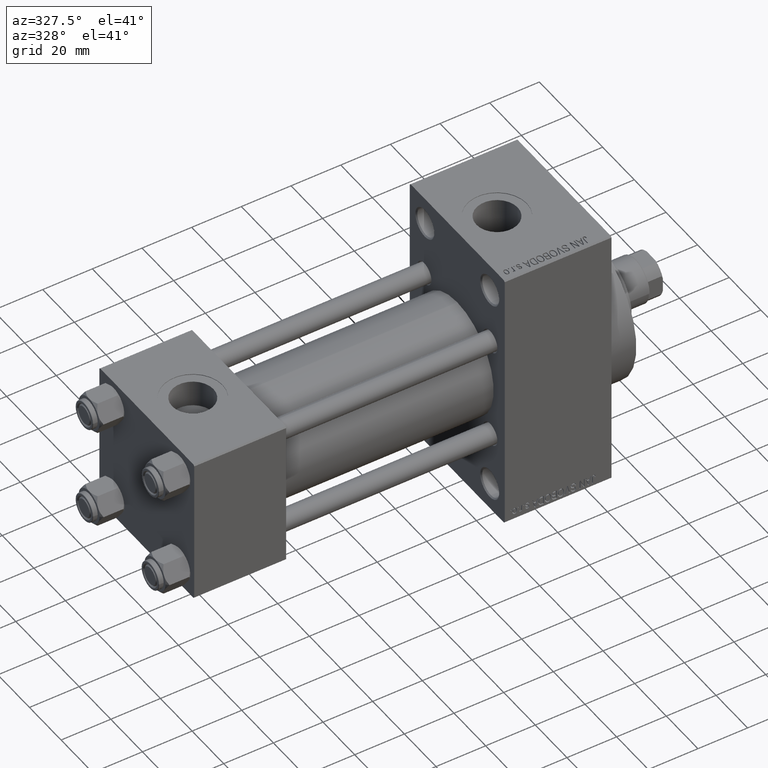
[diagram: clean part render]
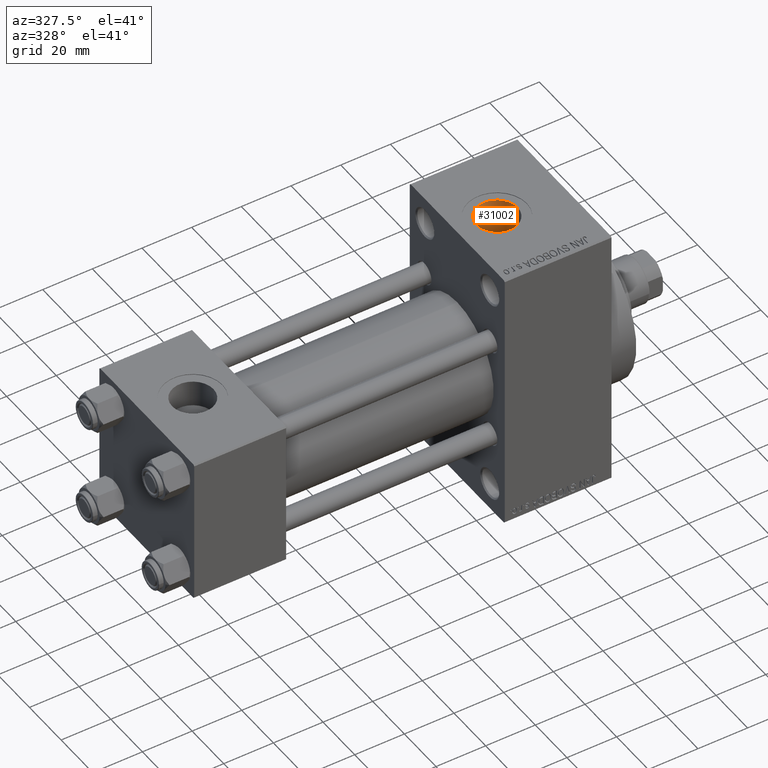
[diagram: same view with one face highlighted and labeled with its STEP entity id]
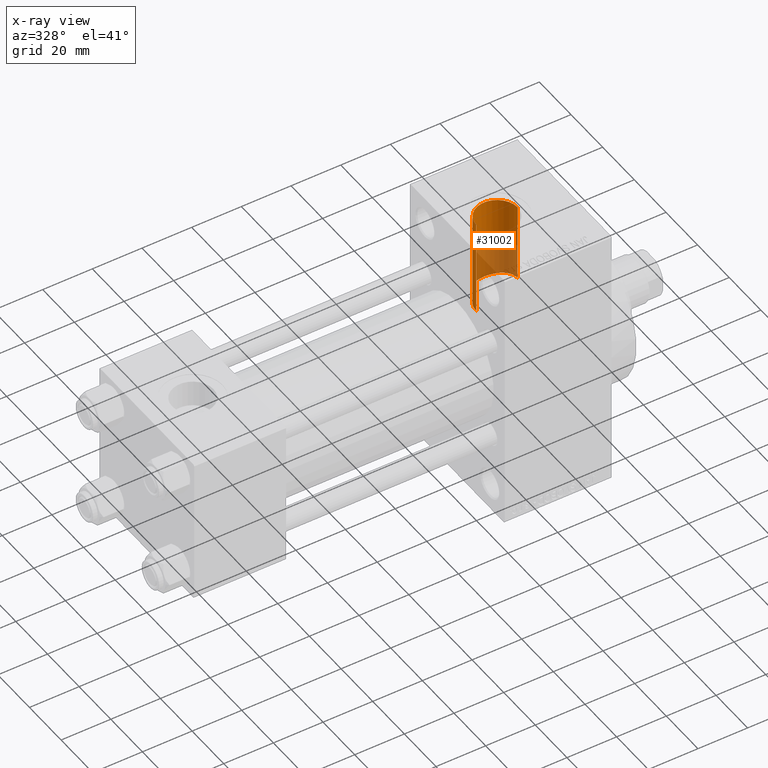
[diagram: x-ray of the same camera — body ghosted, the highlighted face saturated]
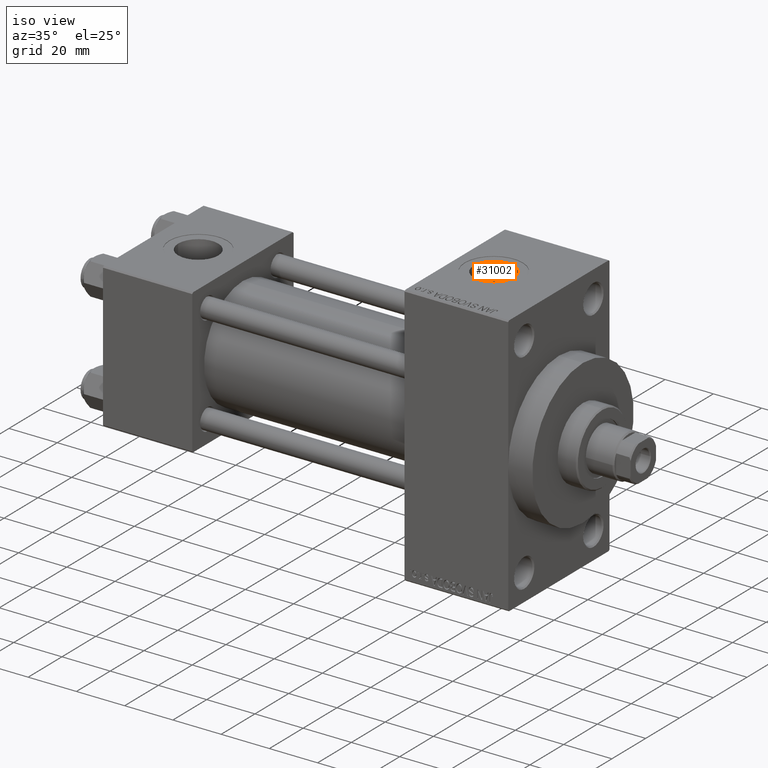
[diagram: same view with one face highlighted and labeled with its STEP entity id]
A machine part, auxiliary view. The second image highlights one B-rep face of the part: STEP entity #31002.
The next image is the same camera in x-ray: the body ghosted, the highlighted face saturated — about 42% of this face is hidden behind the body in this view.
A second angle (iso view) of the same face is appended — the face is thin or edge-on in the first view.
In plain terms, the highlighted cylindrical surface (edge-blend (fillet) strip) has radius 8.33 mm, axis along (0, 0, -1).
Its self-contained STEP definition (entity closure, byte-faithful):
#475 = CARTESIAN_POINT ( 'NONE',  ( 132.6700000000000159, 1.898202536900960226E-15, 15.50000000000000000 ) ) ;
#616 = VERTEX_POINT ( 'NONE', #475 ) ;
#769 = DIRECTION ( 'NONE',  ( 0.000000000000000000, 0.000000000000000000, -1.000000000000000000 ) ) ;
#866 = EDGE_CURVE ( 'NONE', #23322, #41051, #22116, .T. ) ;
#2944 = CARTESIAN_POINT ( 'NONE',  ( 149.3299999999999841, 0.4231877007468795027, 22.50000000000000711 ) ) ;
#4897 = CARTESIAN_POINT ( 'NONE',  ( 144.7236659699604218, 7.463206326023630766, 21.22729274660728294 ) ) ;
#5343 = CARTESIAN_POINT ( 'NONE',  ( 138.5452642440799309, 7.971261652067440195, 21.04094346462041543 ) ) ;
#6068 = EDGE_CURVE ( 'NONE', #616, #37799, #23533, .T. ) ;
#6432 = CARTESIAN_POINT ( 'NONE',  ( 133.9966437893201316, 4.516904326484467269, 14.82887833823966517 ) ) ;
#6536 = CARTESIAN_POINT ( 'NONE',  ( 149.1676325783013226, 1.690665256436936881, 22.44031409000265498 ) ) ;
#6906 = ORIENTED_EDGE ( 'NONE', *, *, #6068, .T. ) ;
#8140 = DIRECTION ( 'NONE',  ( 0.000000000000000000, 0.000000000000000000, -1.000000000000000000 ) ) ;
#8475 = CARTESIAN_POINT ( 'NONE',  ( 143.1507344276368201, 8.058714127658479498, 21.00752502832084900 ) ) ;
#8710 = ORIENTED_EDGE ( 'NONE', *, *, #12433, .T. ) ;
#9066 = CARTESIAN_POINT ( 'NONE',  ( 132.9013610442521838, 2.013840356729663661, 15.37670263641653179 ) ) ;
#9165 = CARTESIAN_POINT ( 'NONE',  ( 148.0784950564940345, 4.410947285040740518, 22.06616050573156684 ) ) ;
#9253 = VERTEX_POINT ( 'NONE', #23633 ) ;
#9538 = CARTESIAN_POINT ( 'NONE',  ( 134.7400000000000091, 5.495570943951124221, 14.49305695841978547 ) ) ;
#11135 = CARTESIAN_POINT ( 'NONE',  ( 149.3300000000000125, 2.755455287773006291E-15, 22.50000000000000355 ) ) ;
#11423 = ORIENTED_EDGE ( 'NONE', *, *, #12159, .T. ) ;
#11717 = VECTOR ( 'NONE', #31210, 1000.000000000000000 ) ;
#12054 = CARTESIAN_POINT ( 'NONE',  ( 140.6299664090159069, 8.332541612595159464, 20.90025414590699171 ) ) ;
#12122 = ORIENTED_EDGE ( 'NONE', *, *, #46299, .F. ) ;
#12159 = EDGE_CURVE ( 'NONE', #23322, #616, #32252, .T. ) ;
#12282 = CARTESIAN_POINT ( 'NONE',  ( 147.3424573050792787, 5.416427024620343644, 21.84059232546010776 ) ) ;
#12433 = EDGE_CURVE ( 'NONE', #9253, #44689, #28806, .T. ) ;
#12743 = CARTESIAN_POINT ( 'NONE',  ( 136.8222632032723425, 7.209673137828870537, 21.31393839863305217 ) ) ;
#13107 = CARTESIAN_POINT ( 'NONE',  ( 132.6699999999999875, 0.5065624092609235518, 15.49999999999999822 ) ) ;
#15288 = FACE_OUTER_BOUND ( 'NONE', #21745, .T. ) ;
#15855 = CARTESIAN_POINT ( 'NONE',  ( 135.2948812944180190, 6.127635735486544277, 21.65933820537500409 ) ) ;
#17368 = CARTESIAN_POINT ( 'NONE',  ( 141.0000000000000000, 6.302828629382400162E-15, 54.29999999999999716 ) ) ;
#17506 = CARTESIAN_POINT ( 'NONE',  ( 148.6630236205748758, 3.293226682608811906, 22.26100394775996705 ) ) ;
#17629 = ORIENTED_EDGE ( 'NONE', *, *, #37298, .F. ) ;
#18560 = CARTESIAN_POINT ( 'NONE',  ( 149.3300000000000125, 7.322959413072145713E-15, 54.29999999999999716 ) ) ;
#18919 = LINE ( 'NONE', #33485, #24198 ) ;
#19448 = CARTESIAN_POINT ( 'NONE',  ( 145.8013027033389335, 6.819764595693557752, 21.44323695491644344 ) ) ;
#20364 = CARTESIAN_POINT ( 'NONE',  ( 137.5704381520594950, 7.594124707910250294, 21.17986642145410059 ) ) ;
#20976 = CARTESIAN_POINT ( 'NONE',  ( 134.1328253103859822, 4.721366081625415489, 14.76490778285212180 ) ) ;
#21724 = DIRECTION ( 'NONE',  ( 0.000000000000000000, 0.000000000000000000, -1.000000000000000000 ) ) ;
#21745 = EDGE_LOOP ( 'NONE', ( #17629, #31245, #11423, #6906, #12122, #8710 ) ) ;
#22116 = CIRCLE ( 'NONE', #35078, 8.330000000000003624 ) ;
#22560 = CARTESIAN_POINT ( 'NONE',  ( 134.7400000000000091, 5.495570943951124221, 14.49305695841978547 ) ) ;
#22686 = DIRECTION ( 'NONE',  ( -1.000000000000000000, 0.000000000000000000, 0.000000000000000000 ) ) ;
#23020 = CARTESIAN_POINT ( 'NONE',  ( 144.3390036589862291, 7.643039262353312324, 21.16267907401478254 ) ) ;
#23260 = CARTESIAN_POINT ( 'NONE',  ( 141.0516919710246668, 8.340554763309643960, 20.89702885938057619 ) ) ;
#23322 = VERTEX_POINT ( 'NONE', #37249 ) ;
#23533 = B_SPLINE_CURVE_WITH_KNOTS ( 'NONE', 3,
 ( #45379, #13107, #27675, #9066, #42260, #24566, #39147, #6432, #20976, #35555, #38202, #9538 ),
 .UNSPECIFIED., .F., .F.,
 ( 4, 2, 2, 2, 2, 4 ),
 ( 0.02657822482517072440, 0.02809229971003307513, 0.02960637459489542933, 0.03112044947975778006, 0.03187748692218897451, 0.03263452436462017242 ),
 .UNSPECIFIED. ) ;
#23633 = CARTESIAN_POINT ( 'NONE',  ( 134.7400000000000091, 5.495570943951124221, 21.81854028114622324 ) ) ;
#23818 = CARTESIAN_POINT ( 'NONE',  ( 134.7400000000000091, 5.495570943951124221, 77.29999999999999716 ) ) ;
#24198 = VECTOR ( 'NONE', #769, 1000.000000000000000 ) ;
#24566 = CARTESIAN_POINT ( 'NONE',  ( 133.3956202707475995, 3.437382318228892952, 15.12163903599513226 ) ) ;
#24905 = CARTESIAN_POINT ( 'NONE',  ( 148.8200576936606296, 2.900268709722562122, 22.31592599689449941 ) ) ;
#27077 = CARTESIAN_POINT ( 'NONE',  ( 137.0068402018593190, 7.313530319584594430, 21.27845421415786831 ) ) ;
#27303 = CARTESIAN_POINT ( 'NONE',  ( 139.7869814485030702, 8.252076137422069024, 20.93215498966413435 ) ) ;
#27675 = CARTESIAN_POINT ( 'NONE',  ( 132.7174933147920228, 1.021562003714712397, 15.47433190880105691 ) ) ;
#28486 = CARTESIAN_POINT ( 'NONE',  ( 148.2906412269955183, 4.051397720758695087, 22.13557804199978918 ) ) ;
#28579 = DIRECTION ( 'NONE',  ( -0.000000000000000000, -0.000000000000000000, -1.000000000000000000 ) ) ;
#28723 = CARTESIAN_POINT ( 'NONE',  ( 149.2970606556255575, 0.8528513471424520320, 22.48774533044545976 ) ) ;
#28806 = B_SPLINE_CURVE_WITH_KNOTS ( 'NONE', 3,
 ( #34244, #15855, #41436, #12743, #27077, #30194, #20364, #30417, #5343, #44781, #27303, #12054, #23260, #41889, #41194, #8475, #30659, #23020, #4897, #45251, #19448, #34021, #45004, #12282, #34485, #9165, #28486, #17506, #24905, #35656, #6536, #28723, #2944, #42828 ),
 .UNSPECIFIED., .F., .F.,
 ( 4, 2, 2, 2, 2, 2, 2, 2, 2, 2, 2, 2, 2, 2, 2, 2, 4 ),
 ( 0.000000000000000000, 0.002532697760304288264, 0.003165872200380343091, 0.003799046640456398786, 0.005065395520608584334, 0.006331744400760769449, 0.007598093280912955431, 0.008864442161065142281, 0.01013079104121732826, 0.01139713992136951598, 0.01266348880152170196, 0.01392983768167388968, 0.01519618656182607393, 0.01646253544197826338, 0.01772888432213045110, 0.01899523320228263534, 0.02026158208243482306 ),
 .UNSPECIFIED. ) ;
#29853 = CYLINDRICAL_SURFACE ( 'NONE', #38506, 8.330000000000003624 ) ;
#30194 = CARTESIAN_POINT ( 'NONE',  ( 137.3806461157530805, 7.505553168791503360, 21.21148300119395458 ) ) ;
#30417 = CARTESIAN_POINT ( 'NONE',  ( 138.1484526623329145, 7.837887213631844929, 21.09140609030399105 ) ) ;
#30659 = CARTESIAN_POINT ( 'NONE',  ( 143.5539892842376730, 7.939907640306461900, 21.05309719302650606 ) ) ;
#31002 = ADVANCED_FACE ( 'NONE', ( #15288 ), #29853, .F. ) ;
#31210 = DIRECTION ( 'NONE',  ( 0.000000000000000000, 0.000000000000000000, -1.000000000000000000 ) ) ;
#31245 = ORIENTED_EDGE ( 'NONE', *, *, #866, .F. ) ;
#32252 = LINE ( 'NONE', #36546, #42601 ) ;
#33485 = CARTESIAN_POINT ( 'NONE',  ( 149.3300000000000125, 7.322959413072145713E-15, 77.29999999999999716 ) ) ;
#34021 = CARTESIAN_POINT ( 'NONE',  ( 146.4564057214795696, 6.307878676097809389, 21.59935801946436840 ) ) ;
#34244 = CARTESIAN_POINT ( 'NONE',  ( 134.7400000000000091, 5.495570943951124221, 21.81854028114622324 ) ) ;
#34485 = CARTESIAN_POINT ( 'NONE',  ( 147.6044044703110671, 5.093465402724843827, 21.91867937644422071 ) ) ;
#34587 = LINE ( 'NONE', #23818, #11717 ) ;
#35078 = AXIS2_PLACEMENT_3D ( 'NONE', #17368, #28579, #39575 ) ;
#35555 = CARTESIAN_POINT ( 'NONE',  ( 134.4233358504306466, 5.118288244927930997, 14.63205129005098648 ) ) ;
#35656 = CARTESIAN_POINT ( 'NONE',  ( 149.0718577897083890, 2.099993510347366588, 22.40540423522786639 ) ) ;
#36546 = CARTESIAN_POINT ( 'NONE',  ( 132.6700000000000159, 6.302828629382400162E-15, 77.29999999999999716 ) ) ;
#37249 = CARTESIAN_POINT ( 'NONE',  ( 132.6700000000000159, 6.302828629382400162E-15, 54.29999999999999716 ) ) ;
#37298 = EDGE_CURVE ( 'NONE', #41051, #44689, #18919, .T. ) ;
#37799 = VERTEX_POINT ( 'NONE', #22560 ) ;
#38202 = CARTESIAN_POINT ( 'NONE',  ( 134.5783165169662254, 5.311397431478233955, 14.56289306040263654 ) ) ;
#38506 = AXIS2_PLACEMENT_3D ( 'NONE', #40869, #8140, #22686 ) ;
#39147 = CARTESIAN_POINT ( 'NONE',  ( 133.6151021817839819, 3.885135241872833323, 15.01159398638492704 ) ) ;
#39575 = DIRECTION ( 'NONE',  ( 1.000000000000000000, 0.000000000000000000, 0.000000000000000000 ) ) ;
#40869 = CARTESIAN_POINT ( 'NONE',  ( 141.0000000000000000, 6.302828629382400162E-15, 77.29999999999999716 ) ) ;
#41051 = VERTEX_POINT ( 'NONE', #18560 ) ;
#41194 = CARTESIAN_POINT ( 'NONE',  ( 142.3216909083367909, 8.235391011504235692, 20.93889481549789622 ) ) ;
#41436 = CARTESIAN_POINT ( 'NONE',  ( 135.9286092801891357, 6.661339213704124518, 21.49628500278264198 ) ) ;
#41889 = CARTESIAN_POINT ( 'NONE',  ( 141.8956073634821564, 8.292491378959164550, 20.91614820275089315 ) ) ;
#42260 = CARTESIAN_POINT ( 'NONE',  ( 133.0370892081069769, 2.496846008205402256, 15.30507511735611104 ) ) ;
#42601 = VECTOR ( 'NONE', #21724, 1000.000000000000000 ) ;
#42828 = CARTESIAN_POINT ( 'NONE',  ( 149.3300000000000125, 2.755455287773006291E-15, 22.50000000000000355 ) ) ;
#44689 = VERTEX_POINT ( 'NONE', #11135 ) ;
#44781 = CARTESIAN_POINT ( 'NONE',  ( 139.3628503782894086, 8.178415560073130308, 20.96129368941304705 ) ) ;
#45004 = CARTESIAN_POINT ( 'NONE',  ( 146.7669506482356496, 6.025506335620737453, 21.68046190096923453 ) ) ;
#45251 = CARTESIAN_POINT ( 'NONE',  ( 145.4551373660956983, 7.051020349556440081, 21.36774480484795191 ) ) ;
#45379 = CARTESIAN_POINT ( 'NONE',  ( 132.6700000000000159, 1.898202536900960226E-15, 15.50000000000000000 ) ) ;
#46299 = EDGE_CURVE ( 'NONE', #9253, #37799, #34587, .T. ) ;